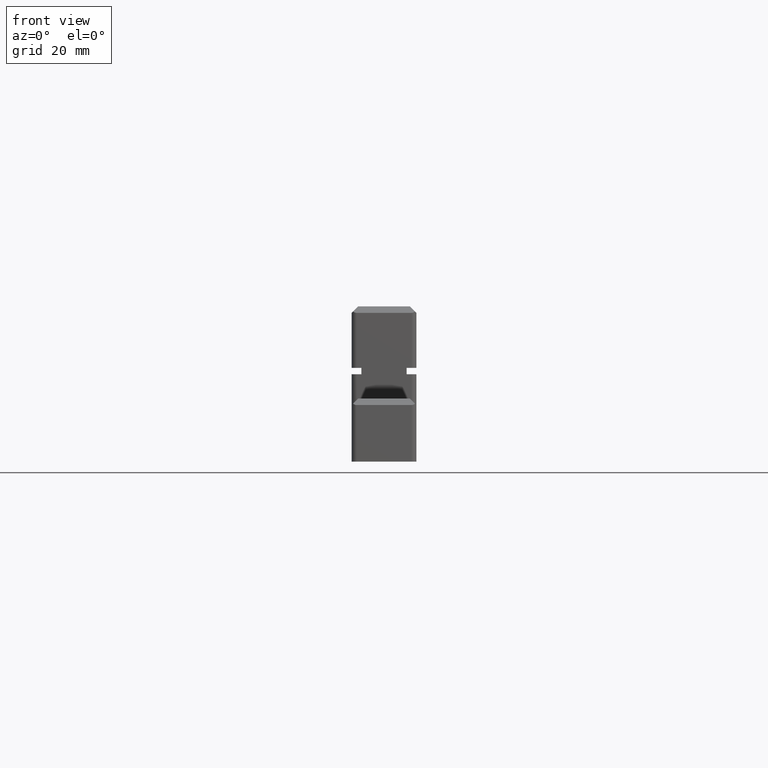
[diagram: clean part render]
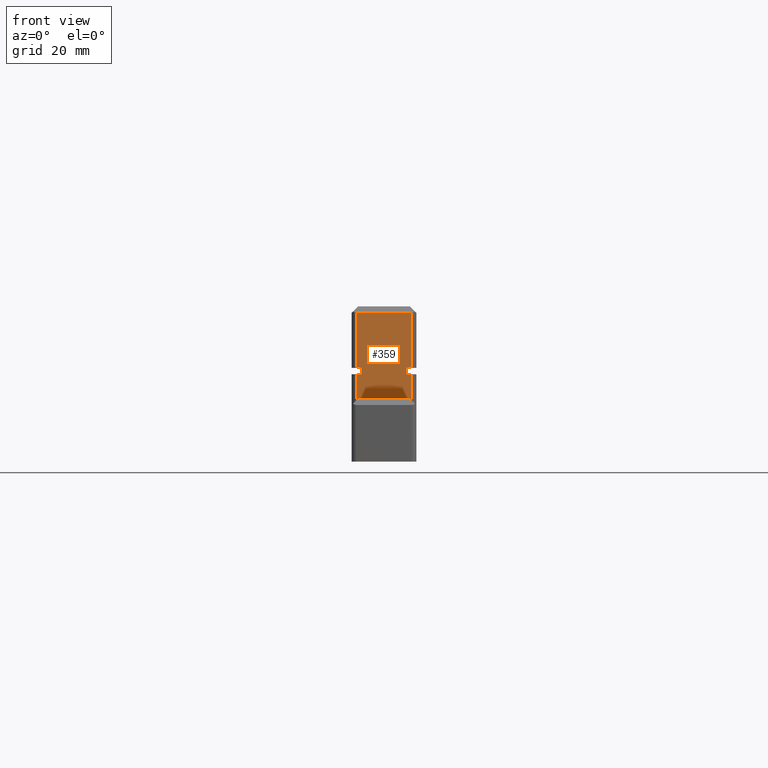
[diagram: same view with one face highlighted and labeled with its STEP entity id]
A machine part, front view. The second image highlights one B-rep face of the part: STEP entity #359.
In plain terms, the highlighted planar face has unit normal (-0, -1, 0).
Its self-contained STEP definition (entity closure, byte-faithful):
#46 = VERTEX_POINT ( 'NONE', #915 ) ;
#119 = CARTESIAN_POINT ( 'NONE',  ( 17.50000000000000000, 46.00000000000000000, -20.00000000000000000 ) ) ;
#130 = EDGE_CURVE ( 'NONE', #46, #1352, #586, .T. ) ;
#166 = VECTOR ( 'NONE', #2056, 1000.000000000000000 ) ;
#187 = CARTESIAN_POINT ( 'NONE',  ( 17.50000000000000000, 46.00000000000000000, -18.50000000000000000 ) ) ;
#215 = ORIENTED_EDGE ( 'NONE', *, *, #1622, .T. ) ;
#245 = CARTESIAN_POINT ( 'NONE',  ( 17.50000000000000000, 27.00000000000000000, -1.500000000000000000 ) ) ;
#275 = ORIENTED_EDGE ( 'NONE', *, *, #130, .T. ) ;
#285 = LINE ( 'NONE', #2485, #2802 ) ;
#290 = VERTEX_POINT ( 'NONE', #2295 ) ;
#293 = DIRECTION ( 'NONE',  ( 0.0000000000000000000, -1.000000000000000000, 0.0000000000000000000 ) ) ;
#315 = ORIENTED_EDGE ( 'NONE', *, *, #864, .F. ) ;
#320 = CARTESIAN_POINT ( 'NONE',  ( 17.50000000000000000, 19.50000000000000000, -20.00000000000000000 ) ) ;
#358 = ORIENTED_EDGE ( 'NONE', *, *, #2701, .T. ) ;
#359 = ADVANCED_FACE ( 'NONE', ( #1339 ), #601, .T. ) ;
#360 = DIRECTION ( 'NONE',  ( -1.000000000000000000, 0.0000000000000000000, 0.0000000000000000000 ) ) ;
#370 = LINE ( 'NONE', #3157, #2888 ) ;
#381 = ORIENTED_EDGE ( 'NONE', *, *, #2573, .T. ) ;
#397 = DIRECTION ( 'NONE',  ( 0.0000000000000000000, -1.000000000000000000, 0.0000000000000000000 ) ) ;
#402 = ORIENTED_EDGE ( 'NONE', *, *, #583, .F. ) ;
#412 = VECTOR ( 'NONE', #499, 1000.000000000000000 ) ;
#483 = AXIS2_PLACEMENT_3D ( 'NONE', #3016, #360, #623 ) ;
#499 = DIRECTION ( 'NONE',  ( -0.0000000000000000000, 1.000000000000000000, -0.0000000000000000000 ) ) ;
#583 = EDGE_CURVE ( 'NONE', #669, #2108, #1002, .T. ) ;
#586 = LINE ( 'NONE', #2683, #932 ) ;
#601 = PLANE ( 'NONE',  #483 ) ;
#620 = VECTOR ( 'NONE', #3114, 1000.000000000000000 ) ;
#623 = DIRECTION ( 'NONE',  ( 0.0000000000000000000, 0.0000000000000000000, 1.000000000000000000 ) ) ;
#651 = CARTESIAN_POINT ( 'NONE',  ( 17.50000000000000000, 27.00000000000000000, -18.50000000000000000 ) ) ;
#669 = VERTEX_POINT ( 'NONE', #2704 ) ;
#699 = CARTESIAN_POINT ( 'NONE',  ( 17.50000000000000000, 46.00000000000000000, -1.500000000000000000 ) ) ;
#712 = VECTOR ( 'NONE', #397, 1000.000000000000000 ) ;
#788 = EDGE_CURVE ( 'NONE', #1878, #805, #3092, .T. ) ;
#805 = VERTEX_POINT ( 'NONE', #187 ) ;
#810 = DIRECTION ( 'NONE',  ( 0.0000000000000000000, 0.0000000000000000000, 1.000000000000000000 ) ) ;
#858 = DIRECTION ( 'NONE',  ( 0.0000000000000000000, 0.0000000000000000000, -1.000000000000000000 ) ) ;
#864 = EDGE_CURVE ( 'NONE', #1079, #1231, #1255, .T. ) ;
#872 = LINE ( 'NONE', #1748, #1068 ) ;
#883 = CARTESIAN_POINT ( 'NONE',  ( 17.50000000000000000, 27.00000000000000000, -3.000000000000000000 ) ) ;
#915 = CARTESIAN_POINT ( 'NONE',  ( 17.50000000000000000, 27.00000000000000000, -17.00000000000000000 ) ) ;
#931 = CARTESIAN_POINT ( 'NONE',  ( 17.50000000000000000, 19.50000000000000000, -2.000000000000000000 ) ) ;
#932 = VECTOR ( 'NONE', #3178, 1000.000000000000000 ) ;
#958 = DIRECTION ( 'NONE',  ( -0.0000000000000000000, -0.7071067811865520100, 0.7071067811865431300 ) ) ;
#982 = CARTESIAN_POINT ( 'NONE',  ( 17.50000000000000000, 19.00000000000000000, -1.500000000000000000 ) ) ;
#986 = LINE ( 'NONE', #320, #166 ) ;
#1002 = LINE ( 'NONE', #2408, #1692 ) ;
#1068 = VECTOR ( 'NONE', #293, 1000.000000000000000 ) ;
#1069 = VECTOR ( 'NONE', #1264, 1000.000000000000000 ) ;
#1079 = VERTEX_POINT ( 'NONE', #1278 ) ;
#1166 = VECTOR ( 'NONE', #2664, 1000.000000000000000 ) ;
#1231 = VERTEX_POINT ( 'NONE', #2615 ) ;
#1255 = LINE ( 'NONE', #2875, #620 ) ;
#1264 = DIRECTION ( 'NONE',  ( -0.0000000000000000000, 1.000000000000000000, -0.0000000000000000000 ) ) ;
#1278 = CARTESIAN_POINT ( 'NONE',  ( 17.50000000000000000, 29.00000000000000000, -17.00000000000000000 ) ) ;
#1339 = FACE_OUTER_BOUND ( 'NONE', #2995, .T. ) ;
#1352 = VERTEX_POINT ( 'NONE', #1913 ) ;
#1358 = EDGE_CURVE ( 'NONE', #1759, #1878, #2532, .T. ) ;
#1474 = LINE ( 'NONE', #883, #2521 ) ;
#1492 = ORIENTED_EDGE ( 'NONE', *, *, #2675, .T. ) ;
#1517 = LINE ( 'NONE', #245, #412 ) ;
#1544 = EDGE_CURVE ( 'NONE', #290, #2458, #986, .T. ) ;
#1604 = ORIENTED_EDGE ( 'NONE', *, *, #2634, .T. ) ;
#1605 = DIRECTION ( 'NONE',  ( 0.0000000000000000000, 0.0000000000000000000, 1.000000000000000000 ) ) ;
#1616 = EDGE_CURVE ( 'NONE', #2108, #2748, #1474, .T. ) ;
#1622 = EDGE_CURVE ( 'NONE', #805, #1231, #1623, .T. ) ;
#1623 = LINE ( 'NONE', #651, #712 ) ;
#1685 = ORIENTED_EDGE ( 'NONE', *, *, #1616, .F. ) ;
#1692 = VECTOR ( 'NONE', #2649, 1000.000000000000000 ) ;
#1724 = CARTESIAN_POINT ( 'NONE',  ( 17.50000000000000000, 29.00000000000000000, -17.00000000000000000 ) ) ;
#1748 = CARTESIAN_POINT ( 'NONE',  ( 17.50000000000000000, 17.50000000000000000, -18.50000000000000000 ) ) ;
#1759 = VERTEX_POINT ( 'NONE', #1886 ) ;
#1878 = VERTEX_POINT ( 'NONE', #699 ) ;
#1886 = CARTESIAN_POINT ( 'NONE',  ( 17.50000000000000000, 29.00000000000000000, -1.500000000000000000 ) ) ;
#1913 = CARTESIAN_POINT ( 'NONE',  ( 17.50000000000000000, 27.00000000000000000, -18.50000000000000000 ) ) ;
#1916 = VERTEX_POINT ( 'NONE', #982 ) ;
#2047 = LINE ( 'NONE', #2390, #2339 ) ;
#2056 = DIRECTION ( 'NONE',  ( 0.0000000000000000000, 0.0000000000000000000, 1.000000000000000000 ) ) ;
#2108 = VERTEX_POINT ( 'NONE', #2982 ) ;
#2143 = ORIENTED_EDGE ( 'NONE', *, *, #1358, .T. ) ;
#2157 = LINE ( 'NONE', #1724, #1166 ) ;
#2160 = ORIENTED_EDGE ( 'NONE', *, *, #2686, .T. ) ;
#2173 = ORIENTED_EDGE ( 'NONE', *, *, #2504, .T. ) ;
#2197 = ORIENTED_EDGE ( 'NONE', *, *, #1544, .T. ) ;
#2295 = CARTESIAN_POINT ( 'NONE',  ( 17.50000000000000000, 19.50000000000000000, -18.00000000000000000 ) ) ;
#2333 = ORIENTED_EDGE ( 'NONE', *, *, #788, .T. ) ;
#2339 = VECTOR ( 'NONE', #958, 999.9999999999998900 ) ;
#2390 = CARTESIAN_POINT ( 'NONE',  ( 17.50000000000000000, 17.50000000000000000, 0.0000000000000000000 ) ) ;
#2408 = CARTESIAN_POINT ( 'NONE',  ( 17.50000000000000000, 29.00000000000000000, -3.000000000000000000 ) ) ;
#2458 = VERTEX_POINT ( 'NONE', #931 ) ;
#2464 = CARTESIAN_POINT ( 'NONE',  ( 17.50000000000000000, 27.00000000000000000, -1.500000000000000000 ) ) ;
#2485 = CARTESIAN_POINT ( 'NONE',  ( 17.50000000000000000, 19.50000000000000000, -18.00000000000000000 ) ) ;
#2490 = VERTEX_POINT ( 'NONE', #2859 ) ;
#2504 = EDGE_CURVE ( 'NONE', #2458, #1916, #2047, .T. ) ;
#2521 = VECTOR ( 'NONE', #1605, 1000.000000000000000 ) ;
#2532 = LINE ( 'NONE', #2718, #1069 ) ;
#2573 = EDGE_CURVE ( 'NONE', #1079, #46, #2157, .T. ) ;
#2615 = CARTESIAN_POINT ( 'NONE',  ( 17.50000000000000000, 29.00000000000000000, -18.50000000000000000 ) ) ;
#2634 = EDGE_CURVE ( 'NONE', #1916, #2748, #1517, .T. ) ;
#2649 = DIRECTION ( 'NONE',  ( 0.0000000000000000000, -1.000000000000000000, 0.0000000000000000000 ) ) ;
#2659 = VECTOR ( 'NONE', #858, 1000.000000000000000 ) ;
#2664 = DIRECTION ( 'NONE',  ( 0.0000000000000000000, -1.000000000000000000, 0.0000000000000000000 ) ) ;
#2675 = EDGE_CURVE ( 'NONE', #669, #1759, #370, .T. ) ;
#2683 = CARTESIAN_POINT ( 'NONE',  ( 17.50000000000000000, 27.00000000000000000, -17.00000000000000000 ) ) ;
#2686 = EDGE_CURVE ( 'NONE', #2490, #290, #285, .T. ) ;
#2701 = EDGE_CURVE ( 'NONE', #1352, #2490, #872, .T. ) ;
#2704 = CARTESIAN_POINT ( 'NONE',  ( 17.50000000000000000, 29.00000000000000000, -3.000000000000000000 ) ) ;
#2718 = CARTESIAN_POINT ( 'NONE',  ( 17.50000000000000000, 27.00000000000000000, -1.500000000000000000 ) ) ;
#2719 = DIRECTION ( 'NONE',  ( 0.0000000000000000000, 0.7071067811865441300, 0.7071067811865510100 ) ) ;
#2748 = VERTEX_POINT ( 'NONE', #2464 ) ;
#2802 = VECTOR ( 'NONE', #2719, 999.9999999999998900 ) ;
#2859 = CARTESIAN_POINT ( 'NONE',  ( 17.50000000000000000, 19.00000000000000000, -18.50000000000000000 ) ) ;
#2875 = CARTESIAN_POINT ( 'NONE',  ( 17.50000000000000000, 29.00000000000000000, -17.00000000000000000 ) ) ;
#2888 = VECTOR ( 'NONE', #810, 1000.000000000000000 ) ;
#2982 = CARTESIAN_POINT ( 'NONE',  ( 17.50000000000000000, 27.00000000000000000, -3.000000000000000000 ) ) ;
#2995 = EDGE_LOOP ( 'NONE', ( #381, #275, #358, #2160, #2197, #2173, #1604, #1685, #402, #1492, #2143, #2333, #215, #315 ) ) ;
#3016 = CARTESIAN_POINT ( 'NONE',  ( 17.50000000000000000, 27.00000000000000000, -20.00000000000000000 ) ) ;
#3092 = LINE ( 'NONE', #119, #2659 ) ;
#3114 = DIRECTION ( 'NONE',  ( 0.0000000000000000000, 0.0000000000000000000, -1.000000000000000000 ) ) ;
#3157 = CARTESIAN_POINT ( 'NONE',  ( 17.50000000000000000, 29.00000000000000000, -3.000000000000000000 ) ) ;
#3178 = DIRECTION ( 'NONE',  ( 0.0000000000000000000, 0.0000000000000000000, -1.000000000000000000 ) ) ;